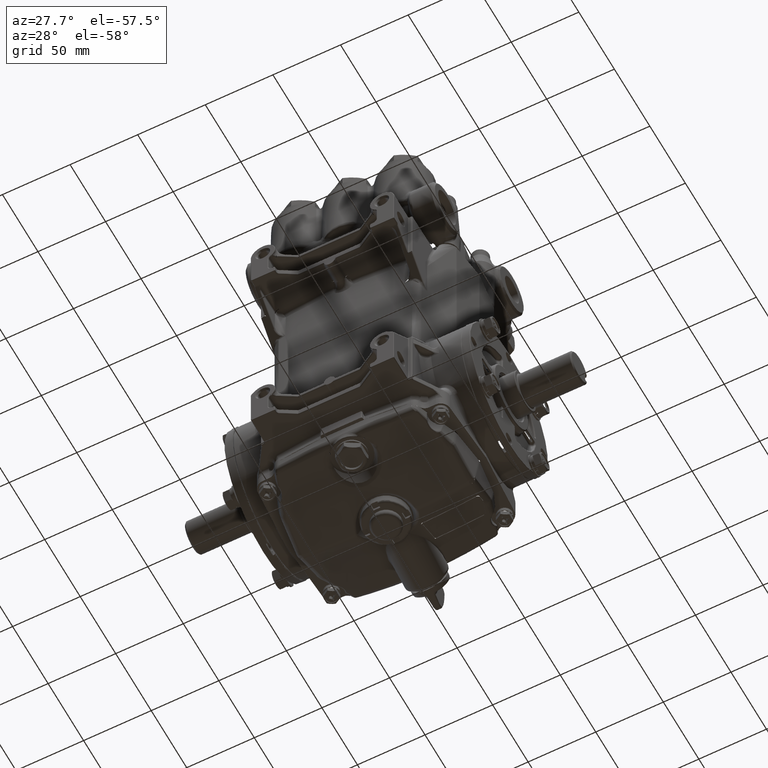
[diagram: clean part render]
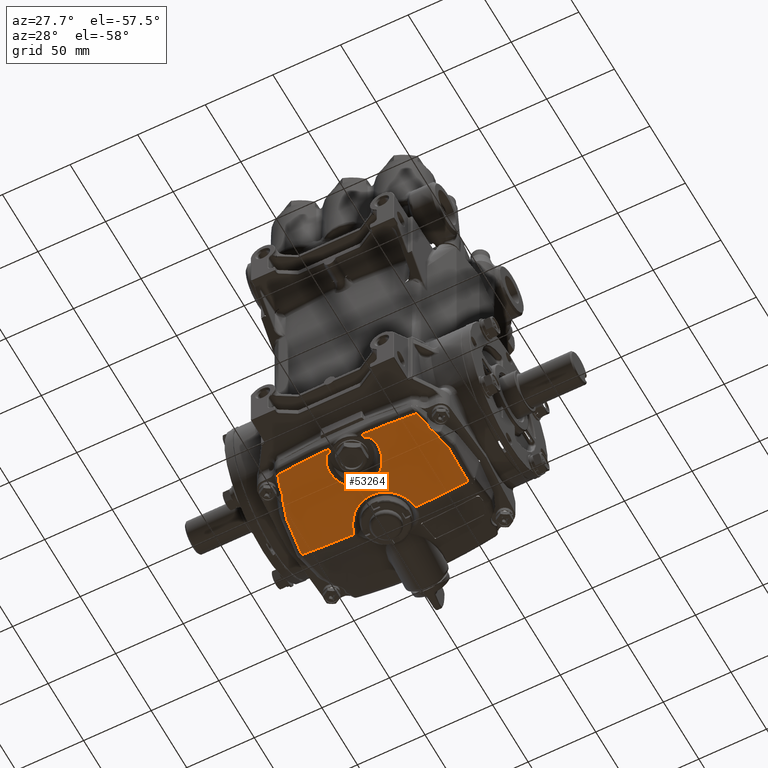
[diagram: same view with one face highlighted and labeled with its STEP entity id]
A machine part, auxiliary view. The second image highlights one B-rep face of the part: STEP entity #53264.
In plain terms, the highlighted conical surface has half-angle 18.015 deg.
Its self-contained STEP definition (entity closure, byte-faithful):
#110 = ORIENTED_EDGE ( 'NONE', *, *, #126936, .T. ) ;
#155 = CARTESIAN_POINT ( 'NONE',  ( 0.05239943407035017875, -0.7996991164095081928, -3.125709479507235322 ) ) ;
#850 = CARTESIAN_POINT ( 'NONE',  ( 0.7140293562682444861, -0.4589460450245631540, -3.223530026259543213 ) ) ;
#972 = CARTESIAN_POINT ( 'NONE',  ( 2.066676357194881408, -2.043994033056883985, -2.608537509707744118 ) ) ;
#1504 = CARTESIAN_POINT ( 'NONE',  ( -0.4593541363199575289, -2.278635321369934630, -2.639237132047327794 ) ) ;
#2528 = CARTESIAN_POINT ( 'NONE',  ( 0.5057585483245777835, -2.182307323138738209, -2.669392029141602674 ) ) ;
#2543 = CARTESIAN_POINT ( 'NONE',  ( 0.6388809771109632552, -1.437278426590108849, -2.907814465296106210 ) ) ;
#3596 = CARTESIAN_POINT ( 'NONE',  ( -0.7147784428174506210, -1.958151321189216310, -2.735613967639259236 ) ) ;
#3656 = VERTEX_POINT ( 'NONE', #78174 ) ;
#4589 = CARTESIAN_POINT ( 'NONE',  ( -0.3300652025608142304, -1.142038354415597423, -3.011623552806554027 ) ) ;
#5294 = CARTESIAN_POINT ( 'NONE',  ( -0.6374426920633041727, -1.436958064847356331, -2.907951951035337768 ) ) ;
#5303 = CARTESIAN_POINT ( 'NONE',  ( -2.223011447093940607, -1.463278941452880622, -2.780899417163357423 ) ) ;
#5802 = CARTESIAN_POINT ( 'NONE',  ( 2.196634498335781505, -1.565084401226243926, -2.750627631148987895 ) ) ;
#5996 = CARTESIAN_POINT ( 'NONE',  ( -2.223764378033351363, -1.460415475359621906, -2.781749183261509106 ) ) ;
#6531 = CARTESIAN_POINT ( 'NONE',  ( 0.5494265247367966509, -2.178603374945878191, -2.669382450904650206 ) ) ;
#6665 = CARTESIAN_POINT ( 'NONE',  ( -2.224142119213044388, -1.458980183390373497, -2.782175076756285392 ) ) ;
#6950 = CARTESIAN_POINT ( 'NONE',  ( -0.5617470531203303530, -2.176754751602651528, -2.669623924843345542 ) ) ;
#7482 = CARTESIAN_POINT ( 'NONE',  ( 2.196634498335781505, -1.565084401226243926, -2.750627631148987895 ) ) ;
#7537 = VERTEX_POINT ( 'NONE', #23573 ) ;
#7673 = CARTESIAN_POINT ( 'NONE',  ( -0.5348746966634003730, -2.179888711667557821, -2.669385774512694542 ) ) ;
#8315 = CARTESIAN_POINT ( 'NONE',  ( -0.5734756531729620077, -2.172944895467519011, -2.670512506073510206 ) ) ;
#8548 = CARTESIAN_POINT ( 'NONE',  ( 0.1318178049520332129, -0.7915974340289055888, -3.127967036714820015 ) ) ;
#8906 = CARTESIAN_POINT ( 'NONE',  ( -2.113233925006161584, -1.881526991925985826, -2.656517419636819977 ) ) ;
#9237 = CARTESIAN_POINT ( 'NONE',  ( 0.02556804478125945107, -0.8008593166435912236, -3.125386537934788045 ) ) ;
#10612 = CARTESIAN_POINT ( 'NONE',  ( -0.1081741565383916720, -0.7959125365938747310, -3.126762306898303034 ) ) ;
#11088 = VERTEX_POINT ( 'NONE', #137163 ) ;
#11300 = CARTESIAN_POINT ( 'NONE',  ( 0.4101165441306947601, -0.7049002239166114459, -3.152321236306664609 ) ) ;
#11348 = CARTESIAN_POINT ( 'NONE',  ( 2.026013570772214667, -2.155381670828772744, -2.576470331479096654 ) ) ;
#11791 = CARTESIAN_POINT ( 'NONE',  ( 0.4593541363199575289, -2.278635321369934630, -2.639237132047327794 ) ) ;
#12930 = CARTESIAN_POINT ( 'NONE',  ( 0.6227118348787535895, -2.137023213555758527, -2.680649332950147734 ) ) ;
#12994 = CARTESIAN_POINT ( 'NONE',  ( 0.4907248371118795860, -1.252018883968657459, -2.972448589821625742 ) ) ;
#13052 = DIRECTION ( 'NONE',  ( -0.000000000000000000, 1.000000000000000000, -0.000000000000000000 ) ) ;
#13696 = CARTESIAN_POINT ( 'NONE',  ( -0.4529553666901343090, -1.219860742391640773, -2.983846103701320196 ) ) ;
#13835 = VERTEX_POINT ( 'NONE', #137578 ) ;
#13992 = CARTESIAN_POINT ( 'NONE',  ( -0.6450185222856975598, -2.108769522094039672, -2.689097167666988142 ) ) ;
#14009 = VERTEX_POINT ( 'NONE', #114638 ) ;
#14763 = CARTESIAN_POINT ( 'NONE',  ( -0.7234181205334595521, -1.931725881537768919, -2.743889233997007349 ) ) ;
#15227 = EDGE_CURVE ( 'NONE', #79127, #11088, #77548, .T. ) ;
#15914 = EDGE_CURVE ( 'NONE', #104292, #14009, #49619, .T. ) ;
#16491 = CARTESIAN_POINT ( 'NONE',  ( -0.09672182545744140159, -1.069004504042166293, -3.037945014650247355 ) ) ;
#16622 = VERTEX_POINT ( 'NONE', #58064 ) ;
#17200 = CARTESIAN_POINT ( 'NONE',  ( -2.226536561796477187, -1.449891909540147017, -2.784871471804313270 ) ) ;
#17341 = CARTESIAN_POINT ( 'NONE',  ( -1.505941802526544082, -2.222348112690021527, -2.610389339868310898 ) ) ;
#17540 = CARTESIAN_POINT ( 'NONE',  ( 0.5494265247367966509, -2.178603374945878191, -2.669382450904650206 ) ) ;
#17631 = CARTESIAN_POINT ( 'NONE',  ( -2.196634498335781505, -1.565084401226243926, -2.750627631148987895 ) ) ;
#18695 = CARTESIAN_POINT ( 'NONE',  ( 2.131526736651527809, -1.728784257706686089, -2.704456262819272538 ) ) ;
#19091 = CARTESIAN_POINT ( 'NONE',  ( 0.8771504326687286079, -0.1677761418793272119, -3.311667608398156215 ) ) ;
#19756 = CARTESIAN_POINT ( 'NONE',  ( -0.6271993793410833851, -0.5535525643775215388, -3.195764467626489580 ) ) ;
#19759 = VERTEX_POINT ( 'NONE', #128450 ) ;
#19875 = CARTESIAN_POINT ( 'NONE',  ( 2.100376579777172292, -1.930298600878002979, -2.642075081279068982 ) ) ;
#20431 = CARTESIAN_POINT ( 'NONE',  ( -0.2123686441479556708, -0.7760607235515484259, -3.132305792164191693 ) ) ;
#20932 = CARTESIAN_POINT ( 'NONE',  ( 0.9043876387192487654, -0.06838820869940087643, -3.342777102159705471 ) ) ;
#21121 = CARTESIAN_POINT ( 'NONE',  ( -0.2637593250053258398, -0.7621255502606008037, -3.136208349490189562 ) ) ;
#21803 = CARTESIAN_POINT ( 'NONE',  ( -0.05517872169927699744, -0.8007395297729150707, -3.125419891367022807 ) ) ;
#22052 = CARTESIAN_POINT ( 'NONE',  ( 0.7147784428174506210, -1.958151321189216310, -2.735613967639259236 ) ) ;
#22167 = CARTESIAN_POINT ( 'NONE',  ( -2.356628996426725298, -1.016727222602198388, -2.911174140354998663 ) ) ;
#22316 = ORIENTED_EDGE ( 'NONE', *, *, #104536, .T. ) ;
#22993 = CARTESIAN_POINT ( 'NONE',  ( 0.4968108149035035392, -2.217033446892584081, -2.658331786103247829 ) ) ;
#23359 = B_SPLINE_CURVE_WITH_KNOTS ( 'NONE', 3,
 ( #64831, #73944, #129209, #52925, #138324, #75997, #98390, #42443, #2543, #65533, #108901, #107514, #23512, #12994, #127836, #127140, #132677, #109603, #47284, #37461, #36073, #57109, #47973, #66900, #36777, #101172, #122864, #80170, #16491, #131294, #100468, #68972, #35378, #131975, #4589, #24886, #111676, #13696, #69666, #46590, #133361, #99793, #5294, #78093, #122180, #79485, #120784, #67591, #26926, #121493 ),
 .UNSPECIFIED., .F., .F.,
 ( 4, 2, 2, 2, 2, 2, 2, 2, 2, 2, 2, 2, 2, 2, 2, 2, 2, 2, 2, 2, 2, 2, 2, 2, 4 ),
 ( 0.000000000000000000, 0.003746958025281257442, 0.005620437037921876405, 0.007493916050562496670, 0.01124087407584372159, 0.01311435308848433491, 0.01498783210112494650, 0.01873479012640614713, 0.02060826913904675178, 0.02248174815168735644, 0.02622870617696856227, 0.02810218518960916345, 0.02997566420224976810, 0.03184914321489036582, 0.03278588272121066988, 0.03372262222753096700, 0.03746958025281217630, 0.03934305926545278442, 0.04121653827809339254, 0.04496349630337460185, 0.04871045432865581809, 0.05058393334129641927, 0.05245741235393702045, 0.05620437037921824364, 0.05995132840449946682 ),
 .UNSPECIFIED. ) ;
#23446 = CARTESIAN_POINT ( 'NONE',  ( 0.6701833370370047227, -2.067901278370704254, -2.701526937066267120 ) ) ;
#23512 = CARTESIAN_POINT ( 'NONE',  ( 0.5405942946745000421, -1.303525499596068116, -2.954335538120711036 ) ) ;
#23573 = CARTESIAN_POINT ( 'NONE',  ( -0.7377457004362788506, -1.796201399099913054, -2.787443723678345364 ) ) ;
#23950 = B_SPLINE_CURVE_WITH_KNOTS ( 'NONE', 3,
 ( #55763, #55074, #24247, #22167 ),
 .UNSPECIFIED., .F., .F.,
 ( 4, 4 ),
 ( 0.000000000000000000, 0.0006622808968958825496 ),
 .UNSPECIFIED. ) ;
#24247 = CARTESIAN_POINT ( 'NONE',  ( -2.356080969875169906, -1.025070286154011745, -2.908507838671443579 ) ) ;
#24287 = DIRECTION ( 'NONE',  ( 0.000000000000000000, -1.000000000000000000, 0.000000000000000000 ) ) ;
#24561 = CARTESIAN_POINT ( 'NONE',  ( 0.7147784428174506210, -1.958151321189216310, -2.735613967639259236 ) ) ;
#24886 = CARTESIAN_POINT ( 'NONE',  ( -0.3728631108813122430, -1.165803096356001101, -3.003114792006826406 ) ) ;
#25139 = CARTESIAN_POINT ( 'NONE',  ( 0.7234181205334595521, -1.931725881537768919, -2.743889233997007349 ) ) ;
#25405 = CARTESIAN_POINT ( 'NONE',  ( -0.5027228152259869409, -2.199983009415949819, -2.663722737212629088 ) ) ;
#26747 = CARTESIAN_POINT ( 'NONE',  ( -0.4593541363199575289, -2.278635321369934630, -2.639237132047327794 ) ) ;
#26926 = CARTESIAN_POINT ( 'NONE',  ( -0.7363986961795145891, -1.748925149001816060, -2.802881659409962811 ) ) ;
#26936 = CARTESIAN_POINT ( 'NONE',  ( -2.261862562994630288, -1.320471313252671308, -2.823098843553761839 ) ) ;
#27092 = VERTEX_POINT ( 'NONE', #2528 ) ;
#27312 = CARTESIAN_POINT ( 'NONE',  ( -0.7294884581063653117, -1.904996984896478063, -2.752354851648464606 ) ) ;
#27512 = EDGE_CURVE ( 'NONE', #27092, #79127, #46441, .T. ) ;
#27650 = CARTESIAN_POINT ( 'NONE',  ( -2.322934810871765343, -1.118658963737707124, -2.881904386098126380 ) ) ;
#27770 = CARTESIAN_POINT ( 'NONE',  ( 2.173344428484001334, -1.603340175782115740, -2.740778961998565855 ) ) ;
#27844 = CARTESIAN_POINT ( 'NONE',  ( 2.356628996426725298, -1.016727222602198388, -2.911174140354998663 ) ) ;
#27925 = CARTESIAN_POINT ( 'NONE',  ( -0.5792113208878559849, -2.170393062450837629, -2.671168354823621804 ) ) ;
#28765 = CARTESIAN_POINT ( 'NONE',  ( -2.127911702009642969, -1.771980399995127797, -2.690724333063940765 ) ) ;
#29296 = DIRECTION ( 'NONE',  ( -0.000000000000000000, 1.000000000000000000, -0.000000000000000000 ) ) ;
#29337 = CARTESIAN_POINT ( 'NONE',  ( -0.5203187071680595022, -2.181123393225837592, -2.669388967358276687 ) ) ;
#29703 = B_SPLINE_CURVE_WITH_KNOTS ( 'NONE', 3,
 ( #92364, #7673, #29337, #134371 ),
 .UNSPECIFIED., .F., .F.,
 ( 4, 4 ),
 ( 0.000000000000000000, 0.001113145543369387525 ),
 .UNSPECIFIED. ) ;
#29841 = CARTESIAN_POINT ( 'NONE',  ( 2.155337905230421569, -1.643650158625276747, -2.729633015072530977 ) ) ;
#29913 = CARTESIAN_POINT ( 'NONE',  ( 2.418907219887231452, -0.06838820169510474722, -3.214233133969160772 ) ) ;
#30236 = CARTESIAN_POINT ( 'NONE',  ( 0.6631433563091438943, -0.5180559416183809773, -3.206112484508274463 ) ) ;
#30515 = CARTESIAN_POINT ( 'NONE',  ( 2.131480648639751951, -1.815576504780482159, -2.676161489803752236 ) ) ;
#30583 = CARTESIAN_POINT ( 'NONE',  ( -2.089737855152356438, -1.962586973804670398, -2.632602950336423220 ) ) ;
#31598 = CARTESIAN_POINT ( 'NONE',  ( -0.2893844942286576960, -0.7539545957516503583, -3.138500297943866979 ) ) ;
#31777 = VERTEX_POINT ( 'NONE', #81502 ) ;
#31859 = CARTESIAN_POINT ( 'NONE',  ( 0.6806123003105807312, -2.046515242090419573, -2.708113776272317086 ) ) ;
#32197 = B_SPLINE_CURVE_WITH_KNOTS ( 'NONE', 3,
 ( #59208, #38154, #122188, #135451, #101893, #5303, #5996, #132688, #50056, #6665, #89979, #122873, #17200, #111687, #48660, #68982, #91338, #26936, #80878, #102574, #37470, #123587, #27650, #70384 ),
 .UNSPECIFIED., .F., .F.,
 ( 4, 2, 1, 1, 1, 2, 2, 1, 1, 1, 1, 1, 2, 2, 1, 1, 4 ),
 ( 0.5239786756547374358, 0.5834813411978867492, 0.6132326739694620166, 0.6206705071623552783, 0.6243894237588024643, 0.6248542883333585429, 0.6253191529079145106, 0.6262488820570262238, 0.6281083403552493172, 0.6429840067410386162, 0.7024866722841969224, 0.7322380050557758535, 0.7471136714415655966, 0.7508325880380133377, 0.7545515046344610788, 0.7619893378273558948, 1.000000000000000000 ),
 .UNSPECIFIED. ) ;
#32299 = CARTESIAN_POINT ( 'NONE',  ( 0.1840323353870728373, -0.7823850881710618932, -3.130538592587553293 ) ) ;
#32650 = CARTESIAN_POINT ( 'NONE',  ( -2.044288912966965022, -2.105312551548863986, -2.590884940469813547 ) ) ;
#32979 = CARTESIAN_POINT ( 'NONE',  ( -0.7314257533501444808, -0.4386446822295306802, -3.229513753648503016 ) ) ;
#33473 = CARTESIAN_POINT ( 'NONE',  ( 0.4807297279524531119, -2.249269142635469620, -2.648261388637370484 ) ) ;
#34627 = CARTESIAN_POINT ( 'NONE',  ( 0.5792113208878559849, -2.170393062450837629, -2.671168354823621804 ) ) ;
#34656 = CARTESIAN_POINT ( 'NONE',  ( -2.356628996426725298, -1.016727222602198388, -2.911174140354998663 ) ) ;
#34850 = VERTEX_POINT ( 'NONE', #80935 ) ;
#35070 = CARTESIAN_POINT ( 'NONE',  ( 0.9043876387192487654, -0.06838820869940087643, -3.342777102159705471 ) ) ;
#35378 = CARTESIAN_POINT ( 'NONE',  ( -0.2407217983399931038, -1.102246316882022459, -3.025925745430845470 ) ) ;
#35528 = CARTESIAN_POINT ( 'NONE',  ( -0.9837259740556566490, -2.263444385143727366, -2.631460031508047415 ) ) ;
#35664 = CARTESIAN_POINT ( 'NONE',  ( -0.6992395292025400666, -2.002930180156187845, -2.721621218821659749 ) ) ;
#35989 = CARTESIAN_POINT ( 'NONE',  ( 2.356628996426725298, -1.016727222602198388, -2.911174140354998663 ) ) ;
#36073 = CARTESIAN_POINT ( 'NONE',  ( 0.1966383920226290605, -1.088207568539243830, -3.030998043101641670 ) ) ;
#36414 = CARTESIAN_POINT ( 'NONE',  ( 2.418907219887231452, -0.06838820169510474722, -3.214233133969160772 ) ) ;
#36777 = CARTESIAN_POINT ( 'NONE',  ( 0.02593239278948314755, -1.062630431338077441, -3.040254102912951506 ) ) ;
#37072 = EDGE_LOOP ( 'NONE', ( #72708, #112866, #89117, #101102, #40618, #125677, #83929, #111104, #59205, #109409, #51120, #57400, #80421, #115919, #110, #22316, #118645, #135694, #96640, #97403, #93716, #66507, #107399, #103236 ) ) ;
#37232 = CARTESIAN_POINT ( 'NONE',  ( -2.173344428484001334, -1.603340175782115740, -2.740778961998565855 ) ) ;
#37441 = CONICAL_SURFACE ( 'NONE', #59965, 19.68503937007873716, 0.3144157226116798820 ) ;
#37461 = CARTESIAN_POINT ( 'NONE',  ( 0.2430180275705558779, -1.103070088878607802, -3.025628693821864612 ) ) ;
#37470 = CARTESIAN_POINT ( 'NONE',  ( -2.264374812318980634, -1.311637541712385335, -2.825694381703594882 ) ) ;
#37889 = B_SPLINE_CURVE_WITH_KNOTS ( 'NONE', 3,
 ( #27844, #102770, #134252, #29913 ),
 .UNSPECIFIED., .F., .F.,
 ( 4, 4 ),
 ( 0.000000000000000000, 0.9327369186256666556 ),
 .UNSPECIFIED. ) ;
#38154 = CARTESIAN_POINT ( 'NONE',  ( -2.203639417007458245, -1.537847752320081529, -2.758736030320163124 ) ) ;
#38429 = CARTESIAN_POINT ( 'NONE',  ( -0.6050510496452983222, -2.153910245661435852, -2.675726034235119233 ) ) ;
#40580 = B_SPLINE_CURVE_WITH_KNOTS ( 'NONE', 3,
 ( #17540, #60234, #95173, #136482 ),
 .UNSPECIFIED., .F., .F.,
 ( 4, 4 ),
 ( 0.000000000000000000, 0.001113145543369387525 ),
 .UNSPECIFIED. ) ;
#40618 = ORIENTED_EDGE ( 'NONE', *, *, #112877, .F. ) ;
#40753 = CARTESIAN_POINT ( 'NONE',  ( 0.5010028999720674836, -0.6512346105886434033, -3.167609257946623291 ) ) ;
#41886 = EDGE_CURVE ( 'NONE', #16622, #135471, #49384, .T. ) ;
#42377 = CARTESIAN_POINT ( 'NONE',  ( 0.5617470531203303530, -2.176754751602651528, -2.669623924843345542 ) ) ;
#42443 = CARTESIAN_POINT ( 'NONE',  ( 0.6608101398322838715, -1.478718590170357006, -2.893579187807353570 ) ) ;
#42606 = CARTESIAN_POINT ( 'NONE',  ( -0.7147784428174506210, -1.958151321189216310, -2.735613967639259236 ) ) ;
#43170 = CARTESIAN_POINT ( 'NONE',  ( -2.110688397266350602, -1.890525154773061045, -2.653856754046399757 ) ) ;
#43501 = CARTESIAN_POINT ( 'NONE',  ( 0.7753006710704803961, -0.3746008636670258851, -3.248640937433623144 ) ) ;
#44427 = CARTESIAN_POINT ( 'NONE',  ( 2.131480648639751951, -1.815576504780482159, -2.676161489803752236 ) ) ;
#44440 = CARTESIAN_POINT ( 'NONE',  ( 0.7074079530801908877, -1.980694804656511598, -2.728554356416740934 ) ) ;
#45383 = CARTESIAN_POINT ( 'NONE',  ( 0.4706671387645703919, -2.264284786280649442, -2.643630947208244208 ) ) ;
#46441 = B_SPLINE_CURVE_WITH_KNOTS ( 'NONE', 3,
 ( #85323, #97192, #108381, #22993, #98572, #33473, #45383, #11791 ),
 .UNSPECIFIED., .F., .F.,
 ( 4, 2, 2, 4 ),
 ( 4.124281259501112338E-15, 0.0007148681993692251359, 0.001429736398734325967, 0.002859472797464520689 ),
 .UNSPECIFIED. ) ;
#46590 = CARTESIAN_POINT ( 'NONE',  ( -0.5568478576800802715, -1.320215025761786176, -2.948465156152519473 ) ) ;
#47284 = CARTESIAN_POINT ( 'NONE',  ( 0.3100334499637708019, -1.132160948714739268, -3.015169162785914292 ) ) ;
#47802 = CARTESIAN_POINT ( 'NONE',  ( -0.5049821656982017570, -2.191306220953124662, -2.666485218895642273 ) ) ;
#47973 = CARTESIAN_POINT ( 'NONE',  ( 0.09971997121695136412, -1.069095970454977840, -3.037911819999308705 ) ) ;
#48257 = CARTESIAN_POINT ( 'NONE',  ( -0.6806123003105807312, -2.046515242090419573, -2.708113776272317086 ) ) ;
#48660 = CARTESIAN_POINT ( 'NONE',  ( -2.245622557623652149, -1.378603641739164054, -2.805979155048969442 ) ) ;
#48941 = CARTESIAN_POINT ( 'NONE',  ( -0.5556985542584657045, -2.178049377893207517, -2.669381018385817761 ) ) ;
#49384 = B_SPLINE_CURVE_WITH_KNOTS ( 'NONE', 3,
 ( #5802, #68784, #110817, #79986 ),
 .UNSPECIFIED., .F., .F.,
 ( 4, 4 ),
 ( 0.5309028691383378407, 1.000000000000000000 ),
 .UNSPECIFIED. ) ;
#49494 = CARTESIAN_POINT ( 'NONE',  ( 2.184068037596007095, -1.583854735375857414, -2.745932046675978899 ) ) ;
#49619 = CIRCLE ( 'NONE', #134541, 19.66279930220901662 ) ;
#49865 = B_SPLINE_CURVE_WITH_KNOTS ( 'NONE', 3,
 ( #22052, #44440, #96264, #31859, #23446, #138257, #66153, #108839, #12930, #55639, #85772, #34627, #77348, #42377, #85074, #127774 ),
 .UNSPECIFIED., .F., .F.,
 ( 4, 2, 2, 2, 2, 2, 2, 4 ),
 ( 0.000000000000000000, 0.001877747167397333548, 0.003755494334794667096, 0.004694367918493323570, 0.005633241502191978743, 0.006572115085890634784, 0.007041551877739954564, 0.007510988669589274344 ),
 .UNSPECIFIED. ) ;
#50056 = CARTESIAN_POINT ( 'NONE',  ( -2.224089798275783458, -1.459178957611110938, -2.782116095571778303 ) ) ;
#50831 = B_SPLINE_CURVE_WITH_KNOTS ( 'NONE', 3,
 ( #91707, #56794, #67274, #27312, #14763, #3596 ),
 .UNSPECIFIED., .F., .F.,
 ( 4, 2, 4 ),
 ( 0.000000000000000000, 0.002179136293652371870, 0.004358272587304743741 ),
 .UNSPECIFIED. ) ;
#50999 = CARTESIAN_POINT ( 'NONE',  ( -0.5494265247367966509, -2.178603374945878191, -2.669382450904650206 ) ) ;
#51120 = ORIENTED_EDGE ( 'NONE', *, *, #136693, .F. ) ;
#51130 = CARTESIAN_POINT ( 'NONE',  ( -0.5057585483245777835, -2.182307323138738209, -2.669392029141602674 ) ) ;
#51238 = CARTESIAN_POINT ( 'NONE',  ( 0.2099217211864341237, -0.7766432214456850947, -3.132142907198965709 ) ) ;
#51896 = B_SPLINE_CURVE_WITH_KNOTS ( 'NONE', 3,
 ( #56879, #28765, #133123, #70817, #112833, #37232, #113516, #17631 ),
 .UNSPECIFIED., .F., .F.,
 ( 4, 2, 2, 4 ),
 ( 0.000000000000000000, 0.003464694729229905561, 0.005197042093844857907, 0.006929389458459811121 ),
 .UNSPECIFIED. ) ;
#51936 = CARTESIAN_POINT ( 'NONE',  ( -0.8773596332106888829, -0.1671554589683140191, -3.311860229958108359 ) ) ;
#52877 = CIRCLE ( 'NONE', #115469, 19.66279930220901662 ) ;
#52925 = CARTESIAN_POINT ( 'NONE',  ( 0.7160696312986282175, -1.633889221565251848, -2.841091408057257350 ) ) ;
#53264 = ADVANCED_FACE ( 'NONE', ( #114726 ), #37441, .T. ) ;
#53293 = CARTESIAN_POINT ( 'NONE',  ( -0.8379319024423231843, -0.2615717158247677920, -3.282846339857861118 ) ) ;
#53653 = CARTESIAN_POINT ( 'NONE',  ( -2.127541782171116225, -1.830018935995347595, -2.671772868731994599 ) ) ;
#53865 = EDGE_CURVE ( 'NONE', #3656, #104292, #99106, .T. ) ;
#54001 = CARTESIAN_POINT ( 'NONE',  ( 0.4786990569338724355, -0.6653878434140558795, -3.163567734051654146 ) ) ;
#55074 = CARTESIAN_POINT ( 'NONE',  ( -2.354367271003275253, -1.033227502936427289, -2.906045538927374494 ) ) ;
#55441 = CARTESIAN_POINT ( 'NONE',  ( 0.9837259740556566490, -2.263444385143727366, -2.631460031508047415 ) ) ;
#55639 = CARTESIAN_POINT ( 'NONE',  ( 0.6050510496452983222, -2.153910245661435852, -2.675726034235119233 ) ) ;
#55763 = CARTESIAN_POINT ( 'NONE',  ( -2.351437376510342236, -1.041190594621048016, -2.903795342977849803 ) ) ;
#56794 = CARTESIAN_POINT ( 'NONE',  ( -0.7385301745452168554, -1.823734344139491759, -2.778452912538690089 ) ) ;
#56879 = CARTESIAN_POINT ( 'NONE',  ( -2.131480648639751951, -1.815576504780482159, -2.676161489803752236 ) ) ;
#57030 = CARTESIAN_POINT ( 'NONE',  ( 2.354367271003275253, -1.033227502936427289, -2.906045538927374494 ) ) ;
#57109 = CARTESIAN_POINT ( 'NONE',  ( 0.1244046635150845709, -1.072989553957001796, -3.036501885844371529 ) ) ;
#57400 = ORIENTED_EDGE ( 'NONE', *, *, #95051, .F. ) ;
#57663 = VERTEX_POINT ( 'NONE', #1504 ) ;
#58064 = CARTESIAN_POINT ( 'NONE',  ( 2.196634498335781505, -1.565084401226243926, -2.750627631148987895 ) ) ;
#58784 = CARTESIAN_POINT ( 'NONE',  ( -0.7074079530801908877, -1.980694804656511598, -2.728554356416740934 ) ) ;
#59205 = ORIENTED_EDGE ( 'NONE', *, *, #15227, .F. ) ;
#59208 = CARTESIAN_POINT ( 'NONE',  ( -2.196634498335781505, -1.565084401226243926, -2.750627631148987895 ) ) ;
#59538 = VERTEX_POINT ( 'NONE', #44427 ) ;
#59965 = AXIS2_PLACEMENT_3D ( 'NONE', #81845, #29296, #72718 ) ;
#60234 = CARTESIAN_POINT ( 'NONE',  ( 0.5348746966634003730, -2.179888711667557821, -2.669385774512694542 ) ) ;
#60736 = VERTEX_POINT ( 'NONE', #70993 ) ;
#61906 = CARTESIAN_POINT ( 'NONE',  ( 2.026013570772214667, -2.155381670828772744, -2.576470331479096654 ) ) ;
#63145 = CARTESIAN_POINT ( 'NONE',  ( -0.8927884610346332739, -0.1184411875418662496, -3.327016533403606591 ) ) ;
#63595 = VERTEX_POINT ( 'NONE', #82445 ) ;
#63840 = CARTESIAN_POINT ( 'NONE',  ( -0.5022675593416734419, -0.6503977866531402974, -3.167848684229896961 ) ) ;
#64402 = EDGE_CURVE ( 'NONE', #57663, #19759, #127300, .T. ) ;
#64543 = VERTEX_POINT ( 'NONE', #51130 ) ;
#64682 = EDGE_CURVE ( 'NONE', #13835, #127183, #113936, .T. ) ;
#64831 = CARTESIAN_POINT ( 'NONE',  ( 0.7377457004362788506, -1.796201399099913054, -2.787443723678345364 ) ) ;
#65259 = CARTESIAN_POINT ( 'NONE',  ( 1.505941802526544082, -2.222348112690021527, -2.610389339868310898 ) ) ;
#65533 = CARTESIAN_POINT ( 'NONE',  ( 0.6001867607472822774, -1.378164958534827012, -2.928282369884709802 ) ) ;
#66153 = CARTESIAN_POINT ( 'NONE',  ( 0.6450185222856975598, -2.108769522094039672, -2.689097167666988142 ) ) ;
#66507 = ORIENTED_EDGE ( 'NONE', *, *, #86465, .T. ) ;
#66900 = CARTESIAN_POINT ( 'NONE',  ( 0.05051206377873857650, -1.063931475644157354, -3.039782484485358260 ) ) ;
#67274 = CARTESIAN_POINT ( 'NONE',  ( -0.7370483566957536370, -1.851001687888912839, -2.769636449180905569 ) ) ;
#67591 = CARTESIAN_POINT ( 'NONE',  ( -0.7306620003742005931, -1.701797854851210490, -2.818441837219940904 ) ) ;
#67892 = CARTESIAN_POINT ( 'NONE',  ( -0.7147784428174506210, -1.958151321189216310, -2.735613967639259236 ) ) ;
#68784 = CARTESIAN_POINT ( 'NONE',  ( 2.241797404767698509, -1.389113764764426273, -2.803156315206667415 ) ) ;
#68798 = CARTESIAN_POINT ( 'NONE',  ( -0.4807297279524531119, -2.249269142635469620, -2.648261388637370484 ) ) ;
#68972 = CARTESIAN_POINT ( 'NONE',  ( -0.1940963561409833893, -1.087471571437316209, -3.031263950077303981 ) ) ;
#68982 = CARTESIAN_POINT ( 'NONE',  ( -2.255849523958772807, -1.341769504633568477, -2.816835127525801230 ) ) ;
#69666 = CARTESIAN_POINT ( 'NONE',  ( -0.4896113141548384395, -1.250968607268809318, -2.972819230192143447 ) ) ;
#69928 = CARTESIAN_POINT ( 'NONE',  ( 0.7370483566957536370, -1.851001687888912839, -2.769636449180905569 ) ) ;
#70384 = CARTESIAN_POINT ( 'NONE',  ( -2.351437376510342236, -1.041190594621048016, -2.903795342977849803 ) ) ;
#70817 = CARTESIAN_POINT ( 'NONE',  ( -2.148034229011641205, -1.664564096121107450, -2.723613148799221673 ) ) ;
#70993 = CARTESIAN_POINT ( 'NONE',  ( 2.356628996426725298, -1.016727222602198388, -2.911174140354998663 ) ) ;
#71390 = VERTEX_POINT ( 'NONE', #20932 ) ;
#72634 = CARTESIAN_POINT ( 'NONE',  ( -2.131480648639751951, -1.815576504780482159, -2.676161489803752236 ) ) ;
#72708 = ORIENTED_EDGE ( 'NONE', *, *, #15914, .T. ) ;
#72718 = DIRECTION ( 'NONE',  ( 0.000000000000000000, 0.000000000000000000, 1.000000000000000000 ) ) ;
#72957 = CARTESIAN_POINT ( 'NONE',  ( -0.6641479529912905910, -0.5169804734507074118, -3.206427768484047203 ) ) ;
#73944 = CARTESIAN_POINT ( 'NONE',  ( 0.7363994847252786080, -1.748952824851095489, -2.802872621933817143 ) ) ;
#74682 = CARTESIAN_POINT ( 'NONE',  ( -2.113992956814060076, -1.878835111619391540, -2.657313619897545998 ) ) ;
#75019 = CARTESIAN_POINT ( 'NONE',  ( 0.3621797199516690324, -0.7273345933900464688, -3.145987282344658187 ) ) ;
#75997 = CARTESIAN_POINT ( 'NONE',  ( 0.6960931986937947125, -1.566246661994498579, -2.863841109989795353 ) ) ;
#76273 = EDGE_CURVE ( 'NONE', #19759, #63595, #79837, .T. ) ;
#76871 = EDGE_CURVE ( 'NONE', #60736, #85695, #37889, .T. ) ;
#77348 = CARTESIAN_POINT ( 'NONE',  ( 0.5734756531729620077, -2.172944895467519011, -2.670512506073510206 ) ) ;
#77548 = B_SPLINE_CURVE_WITH_KNOTS ( 'NONE', 3,
 ( #96065, #55441, #65259, #11348 ),
 .UNSPECIFIED., .F., .F.,
 ( 4, 4 ),
 ( 0.06473334799472774126, 0.1046774192232396289 ),
 .UNSPECIFIED. ) ;
#78093 = CARTESIAN_POINT ( 'NONE',  ( -0.6596656361370454302, -1.478835729243860975, -2.893574764287495604 ) ) ;
#78174 = CARTESIAN_POINT ( 'NONE',  ( -2.356628996426725298, -1.016727222602198388, -2.911174140354998663 ) ) ;
#78383 = CARTESIAN_POINT ( 'NONE',  ( -0.6227118348787535895, -2.137023213555758527, -2.680649332950147734 ) ) ;
#78626 = CARTESIAN_POINT ( 'NONE',  ( -0.4931167731720314529, -2.225310962706375850, -2.655735664317464106 ) ) ;
#79127 = VERTEX_POINT ( 'NONE', #99619 ) ;
#79485 = CARTESIAN_POINT ( 'NONE',  ( -0.6970279829379877334, -1.565627702131302090, -2.864016229124909607 ) ) ;
#79743 = CARTESIAN_POINT ( 'NONE',  ( 0.7385301745452168554, -1.823734344139491759, -2.778452912538690089 ) ) ;
#79837 = B_SPLINE_CURVE_WITH_KNOTS ( 'NONE', 3,
 ( #94315, #32650, #86561, #30583, #95014, #43170, #127876, #8906, #117365, #74682, #116673, #128568, #53653, #72634 ),
 .UNSPECIFIED., .F., .F.,
 ( 4, 2, 1, 1, 2, 2, 1, 1, 4 ),
 ( 0.000000000000000000, 0.1556400076926323928, 0.2334600115389487973, 0.2431875120197381779, 0.2480512622601330486, 0.2504831373803301786, 0.2529150125005273364, 0.2723700134621078184, 0.3112800153852695040 ),
 .UNSPECIFIED. ) ;
#79986 = CARTESIAN_POINT ( 'NONE',  ( 2.351437376510342236, -1.041190594621048016, -2.903795342977849803 ) ) ;
#79998 = CARTESIAN_POINT ( 'NONE',  ( -0.5057585483245777835, -2.182307323138738209, -2.669392029141602674 ) ) ;
#80170 = CARTESIAN_POINT ( 'NONE',  ( -0.08447375441084661873, -1.067451683859283129, -3.038507392071386537 ) ) ;
#80318 = CARTESIAN_POINT ( 'NONE',  ( -2.026013570772214667, -2.155381670828772744, -2.576470331479096654 ) ) ;
#80421 = ORIENTED_EDGE ( 'NONE', *, *, #64682, .F. ) ;
#80878 = CARTESIAN_POINT ( 'NONE',  ( -2.262183643902595076, -1.319339447148940581, -2.823431516714111744 ) ) ;
#80935 = CARTESIAN_POINT ( 'NONE',  ( -2.351437376510342236, -1.041190594621048016, -2.903795342977849803 ) ) ;
#81502 = CARTESIAN_POINT ( 'NONE',  ( -2.196634498335781505, -1.565084401226243926, -2.750627631148987895 ) ) ;
#81845 = CARTESIAN_POINT ( 'NONE',  ( 0.000000000000000000, -5.463695987328526437E-16, 16.29921259842519632 ) ) ;
#82445 = CARTESIAN_POINT ( 'NONE',  ( -2.131480648639751951, -1.815576504780482159, -2.676161489803752236 ) ) ;
#82556 = EDGE_CURVE ( 'NONE', #13835, #7537, #23359, .T. ) ;
#82998 = EDGE_CURVE ( 'NONE', #64543, #57663, #86566, .T. ) ;
#83474 = CARTESIAN_POINT ( 'NONE',  ( 0.2612621641945824247, -0.7628762516810027039, -3.135997893379374180 ) ) ;
#83929 = ORIENTED_EDGE ( 'NONE', *, *, #99365, .F. ) ;
#84150 = CARTESIAN_POINT ( 'NONE',  ( -0.9043876387192487654, -0.06838820869940087643, -3.342777102159705471 ) ) ;
#84826 = CARTESIAN_POINT ( 'NONE',  ( -0.5664339679745185041, -0.6041988710467175450, -3.181116273278310036 ) ) ;
#85074 = CARTESIAN_POINT ( 'NONE',  ( 0.5556985542584657045, -2.178049377893207517, -2.669381018385817761 ) ) ;
#85253 = VERTEX_POINT ( 'NONE', #42606 ) ;
#85323 = CARTESIAN_POINT ( 'NONE',  ( 0.5057585483245777835, -2.182307323138738209, -2.669392029141602674 ) ) ;
#85405 = CARTESIAN_POINT ( 'NONE',  ( 2.351437376510342236, -1.041190594621048016, -2.903795342977849803 ) ) ;
#85522 = CARTESIAN_POINT ( 'NONE',  ( -0.8148214935322380947, -0.3075833447444550894, -3.268845505321508860 ) ) ;
#85695 = VERTEX_POINT ( 'NONE', #36414 ) ;
#85772 = CARTESIAN_POINT ( 'NONE',  ( 0.5954301328571929286, -2.161477707698064243, -2.673569233152097713 ) ) ;
#86206 = CARTESIAN_POINT ( 'NONE',  ( 0.7302015870049624047, -0.4385169011949400786, -3.229578769218376610 ) ) ;
#86465 = EDGE_CURVE ( 'NONE', #31777, #34850, #32197, .T. ) ;
#86561 = CARTESIAN_POINT ( 'NONE',  ( -2.062499472008028523, -2.050863611614324178, -2.606717026291330619 ) ) ;
#86566 = B_SPLINE_CURVE_WITH_KNOTS ( 'NONE', 3,
 ( #79998, #47802, #25405, #109429, #78626, #68798, #122685, #26747 ),
 .UNSPECIFIED., .F., .F.,
 ( 4, 2, 2, 4 ),
 ( 4.124281259501112338E-15, 0.0007148681993692251359, 0.001429736398734325967, 0.002859472797464520689 ),
 .UNSPECIFIED. ) ;
#87820 = CARTESIAN_POINT ( 'NONE',  ( 2.351437376510342236, -1.041190594621048016, -2.903795342977849803 ) ) ;
#88683 = DIRECTION ( 'NONE',  ( 0.000000000000000000, 0.000000000000000000, -1.000000000000000000 ) ) ;
#89117 = ORIENTED_EDGE ( 'NONE', *, *, #137877, .F. ) ;
#89722 = CARTESIAN_POINT ( 'NONE',  ( -2.418907219887231452, -0.06838820169510474722, -3.214233133969160772 ) ) ;
#89979 = CARTESIAN_POINT ( 'NONE',  ( -2.224295228549877823, -1.458398581837912822, -2.782347649143063428 ) ) ;
#90932 = CARTESIAN_POINT ( 'NONE',  ( -0.6516360641923389929, -2.098780301552136685, -2.692121289175904764 ) ) ;
#91338 = CARTESIAN_POINT ( 'NONE',  ( -2.260106404874401953, -1.326668340642318755, -2.821277201821669411 ) ) ;
#91433 = EDGE_CURVE ( 'NONE', #34850, #3656, #23950, .T. ) ;
#91482 = CARTESIAN_POINT ( 'NONE',  ( -0.4593541363199575289, -2.278635321369934630, -2.639237132047327794 ) ) ;
#91707 = CARTESIAN_POINT ( 'NONE',  ( -0.7377457004362788506, -1.796201399099913054, -2.787443723678345364 ) ) ;
#92364 = CARTESIAN_POINT ( 'NONE',  ( -0.5494265247367966509, -2.178603374945878191, -2.669382450904650206 ) ) ;
#93716 = ORIENTED_EDGE ( 'NONE', *, *, #110104, .T. ) ;
#93941 = CARTESIAN_POINT ( 'NONE',  ( -0.4801475832993566950, -0.6644897841884086498, -3.163823992962746079 ) ) ;
#94222 = B_SPLINE_CURVE_WITH_KNOTS ( 'NONE', 3,
 ( #84150, #63145, #51936, #126838, #53293, #85522, #116310, #105149, #32979, #72957, #19756, #84826, #127518, #63840, #93941, #96018, #136651, #31598, #21121, #20431, #106522, #10612, #21803, #9237, #155, #107196, #8548, #32299, #51238, #83474, #128217, #75019, #11300, #54001, #40753, #126169, #96711, #94661, #30236, #850, #86206, #137342, #43501, #128896, #114972, #19091, #104468, #35070 ),
 .UNSPECIFIED., .F., .F.,
 ( 4, 2, 2, 2, 2, 2, 2, 2, 2, 2, 2, 2, 2, 2, 2, 2, 2, 2, 2, 2, 2, 2, 2, 4 ),
 ( 1.056081928668503685E-17, 0.004051485460631475306, 0.006077228190947215128, 0.008102970921262955817, 0.01215445638189443026, 0.01620594184252590816, 0.01823168457284164365, 0.02025742730315737913, 0.02430891276378884316, 0.02633465549410457865, 0.02836039822442031066, 0.03241188368505176776, 0.03443762641536750324, 0.03646336914568323873, 0.03848911187599896727, 0.04051485460631470276, 0.04456634006694616679, 0.04659208279726189533, 0.04861782552757761694, 0.05266931098820906709, 0.05469505371852478176, 0.05672079644884050337, 0.06077228190947193964, 0.06482376737010336898 ),
 .UNSPECIFIED. ) ;
#94315 = CARTESIAN_POINT ( 'NONE',  ( -2.026013570772214667, -2.155381670828772744, -2.576470331479096654 ) ) ;
#94661 = CARTESIAN_POINT ( 'NONE',  ( 0.6260690848225032301, -0.5545850259073038524, -3.195464523428563908 ) ) ;
#95014 = CARTESIAN_POINT ( 'NONE',  ( -2.099937713818835761, -1.928245129393331370, -2.642711008062161415 ) ) ;
#95051 = EDGE_CURVE ( 'NONE', #127183, #106866, #49865, .T. ) ;
#95173 = CARTESIAN_POINT ( 'NONE',  ( 0.5203187071680595022, -2.181123393225837592, -2.669388967358276687 ) ) ;
#96018 = CARTESIAN_POINT ( 'NONE',  ( -0.4120802348878905841, -0.7038893606838007022, -3.152607742274399882 ) ) ;
#96065 = CARTESIAN_POINT ( 'NONE',  ( 0.4593541363199575289, -2.278635321369934630, -2.639237132047327794 ) ) ;
#96264 = CARTESIAN_POINT ( 'NONE',  ( 0.6992395292025400666, -2.002930180156187845, -2.721621218821659749 ) ) ;
#96640 = ORIENTED_EDGE ( 'NONE', *, *, #64402, .T. ) ;
#96711 = CARTESIAN_POINT ( 'NONE',  ( 0.5655580190017227560, -0.6048821196394335020, -3.180919349652390427 ) ) ;
#97192 = CARTESIAN_POINT ( 'NONE',  ( 0.5049821656982017570, -2.191306220953124662, -2.666485218895642273 ) ) ;
#97403 = ORIENTED_EDGE ( 'NONE', *, *, #76273, .T. ) ;
#97660 = CARTESIAN_POINT ( 'NONE',  ( -2.398009976179604319, -0.3845009896824904128, -3.113235839771357760 ) ) ;
#98390 = CARTESIAN_POINT ( 'NONE',  ( 0.6879739517038266916, -1.543906752681909467, -2.871404881506714357 ) ) ;
#98448 = DIRECTION ( 'NONE',  ( 0.000000000000000000, 0.000000000000000000, -1.000000000000000000 ) ) ;
#98572 = CARTESIAN_POINT ( 'NONE',  ( 0.4931167731720314529, -2.225310962706375850, -2.655735664317464106 ) ) ;
#99106 = B_SPLINE_CURVE_WITH_KNOTS ( 'NONE', 3,
 ( #34656, #120737, #97660, #121445 ),
 .UNSPECIFIED., .F., .F.,
 ( 4, 4 ),
 ( 0.000000000000000000, 0.9327334556793303033 ),
 .UNSPECIFIED. ) ;
#99157 = CARTESIAN_POINT ( 'NONE',  ( -0.5494265247367966509, -2.178603374945878191, -2.669382450904650206 ) ) ;
#99365 = EDGE_CURVE ( 'NONE', #59538, #16622, #114014, .T. ) ;
#99619 = CARTESIAN_POINT ( 'NONE',  ( 0.4593541363199575289, -2.278635321369934630, -2.639237132047327794 ) ) ;
#99793 = CARTESIAN_POINT ( 'NONE',  ( -0.6253990003170072365, -1.416615309810479229, -2.914968079858363037 ) ) ;
#100468 = CARTESIAN_POINT ( 'NONE',  ( -0.1334732074463474416, -1.074957886526735074, -3.035790086692176537 ) ) ;
#101102 = ORIENTED_EDGE ( 'NONE', *, *, #76871, .F. ) ;
#101172 = CARTESIAN_POINT ( 'NONE',  ( -0.02317940405859535147, -1.062536465475536263, -3.040288156466035119 ) ) ;
#101893 = CARTESIAN_POINT ( 'NONE',  ( -2.220238427175442730, -1.473847810282237436, -2.777762168110002872 ) ) ;
#102574 = CARTESIAN_POINT ( 'NONE',  ( -2.263060042327920129, -1.316255717017918103, -2.824337656518789430 ) ) ;
#102770 = CARTESIAN_POINT ( 'NONE',  ( 2.377393242811215668, -0.7006158470690045936, -3.012197977405021376 ) ) ;
#103038 = EDGE_CURVE ( 'NONE', #137927, #64543, #29703, .T. ) ;
#103236 = ORIENTED_EDGE ( 'NONE', *, *, #53865, .T. ) ;
#103388 = CARTESIAN_POINT ( 'NONE',  ( 2.127911702009642969, -1.771980399995127797, -2.690724333063940765 ) ) ;
#104292 = VERTEX_POINT ( 'NONE', #89722 ) ;
#104468 = CARTESIAN_POINT ( 'NONE',  ( 0.8927837971569075881, -0.1184613131903827082, -3.327010196284926113 ) ) ;
#104536 = EDGE_CURVE ( 'NONE', #85253, #137927, #129922, .T. ) ;
#105149 = CARTESIAN_POINT ( 'NONE',  ( -0.7617518613672572547, -0.3968784088158597290, -3.241936836226261054 ) ) ;
#105831 = B_SPLINE_CURVE_WITH_KNOTS ( 'NONE', 3,
 ( #61906, #972, #19875, #128335 ),
 .UNSPECIFIED., .F., .F.,
 ( 4, 4 ),
 ( 0.000000000000000000, 0.3078581438951771831 ),
 .UNSPECIFIED. ) ;
#106212 = CARTESIAN_POINT ( 'NONE',  ( 0.000000000000000000, -0.06838820869940087643, 16.29921259842519632 ) ) ;
#106522 = CARTESIAN_POINT ( 'NONE',  ( -0.1864705139331720718, -0.7818779501247985486, -3.130680264477674335 ) ) ;
#106866 = VERTEX_POINT ( 'NONE', #6531 ) ;
#107196 = CARTESIAN_POINT ( 'NONE',  ( 0.1054926700714463039, -0.7950679650784845398, -3.126999785012293476 ) ) ;
#107399 = ORIENTED_EDGE ( 'NONE', *, *, #91433, .T. ) ;
#107514 = CARTESIAN_POINT ( 'NONE',  ( 0.5565321747473748193, -1.321653186972791438, -2.947982385034898734 ) ) ;
#108381 = CARTESIAN_POINT ( 'NONE',  ( 0.5027228152259869409, -2.199983009415949819, -2.663722737212629088 ) ) ;
#108839 = CARTESIAN_POINT ( 'NONE',  ( 0.6305490415769791079, -2.127885830152876689, -2.683363053001642573 ) ) ;
#108901 = CARTESIAN_POINT ( 'NONE',  ( 0.5863157122150601808, -1.358971507191250927, -2.934956461606927469 ) ) ;
#109409 = ORIENTED_EDGE ( 'NONE', *, *, #27512, .F. ) ;
#109429 = CARTESIAN_POINT ( 'NONE',  ( -0.4968108149035035392, -2.217033446892584081, -2.658331786103247829 ) ) ;
#109603 = CARTESIAN_POINT ( 'NONE',  ( 0.3320317400185532342, -1.143049895076782896, -3.011260792380814344 ) ) ;
#109902 = CARTESIAN_POINT ( 'NONE',  ( -0.6701833370370047227, -2.067901278370704254, -2.701526937066267120 ) ) ;
#110104 = EDGE_CURVE ( 'NONE', #63595, #31777, #51896, .T. ) ;
#110565 = CARTESIAN_POINT ( 'NONE',  ( 0.7147784428174506210, -1.958151321189216310, -2.735613967639259236 ) ) ;
#110817 = CARTESIAN_POINT ( 'NONE',  ( 2.288249860989636897, -1.212926464846586283, -2.855266533440451227 ) ) ;
#111104 = ORIENTED_EDGE ( 'NONE', *, *, #119737, .F. ) ;
#111676 = CARTESIAN_POINT ( 'NONE',  ( -0.3934586354128870034, -1.178637693692054844, -2.998529586250513024 ) ) ;
#111687 = CARTESIAN_POINT ( 'NONE',  ( -2.234809004060937632, -1.418633954430114308, -2.794140130826453294 ) ) ;
#112833 = CARTESIAN_POINT ( 'NONE',  ( -2.155337905230421569, -1.643650158625276747, -2.729633015072530977 ) ) ;
#112866 = ORIENTED_EDGE ( 'NONE', *, *, #127156, .T. ) ;
#112877 = EDGE_CURVE ( 'NONE', #135471, #60736, #116464, .T. ) ;
#113516 = CARTESIAN_POINT ( 'NONE',  ( -2.184068037596007095, -1.583854735375857414, -2.745932046675978899 ) ) ;
#113936 = B_SPLINE_CURVE_WITH_KNOTS ( 'NONE', 3,
 ( #120340, #79743, #69928, #122424, #25139, #110565 ),
 .UNSPECIFIED., .F., .F.,
 ( 4, 2, 4 ),
 ( 0.000000000000000000, 0.002179136293652371870, 0.004358272587304743741 ),
 .UNSPECIFIED. ) ;
#114014 = B_SPLINE_CURVE_WITH_KNOTS ( 'NONE', 3,
 ( #30515, #103388, #18695, #126447, #29841, #27770, #49494, #7482 ),
 .UNSPECIFIED., .F., .F.,
 ( 4, 2, 2, 4 ),
 ( 0.000000000000000000, 0.003464694729229905561, 0.005197042093844857907, 0.006929389458459811121 ),
 .UNSPECIFIED. ) ;
#114638 = CARTESIAN_POINT ( 'NONE',  ( -0.9043876387192487654, -0.06838820869940087643, -3.342777102159705471 ) ) ;
#114726 = FACE_OUTER_BOUND ( 'NONE', #37072, .T. ) ;
#114972 = CARTESIAN_POINT ( 'NONE',  ( 0.8385293946236654916, -0.2626842640456673039, -3.282464280911312926 ) ) ;
#115469 = AXIS2_PLACEMENT_3D ( 'NONE', #106212, #13052, #98448 ) ;
#115919 = ORIENTED_EDGE ( 'NONE', *, *, #82556, .T. ) ;
#116310 = CARTESIAN_POINT ( 'NONE',  ( -0.8022359911281746747, -0.3303223851566314817, -3.261965722516414257 ) ) ;
#116464 = B_SPLINE_CURVE_WITH_KNOTS ( 'NONE', 3,
 ( #87820, #57030, #130514, #35989 ),
 .UNSPECIFIED., .F., .F.,
 ( 4, 4 ),
 ( 0.000000000000000000, 0.0006622808968958825496 ),
 .UNSPECIFIED. ) ;
#116673 = CARTESIAN_POINT ( 'NONE',  ( -2.116037686470321866, -1.871574755498350839, -2.659461314077408378 ) ) ;
#117365 = CARTESIAN_POINT ( 'NONE',  ( -2.113539302346812310, -1.880444537435954411, -2.656837571371930551 ) ) ;
#118645 = ORIENTED_EDGE ( 'NONE', *, *, #103038, .T. ) ;
#119493 = CARTESIAN_POINT ( 'NONE',  ( 0.000000000000000000, -0.06838820869940087643, 16.29921259842519632 ) ) ;
#119737 = EDGE_CURVE ( 'NONE', #11088, #59538, #105831, .T. ) ;
#120340 = CARTESIAN_POINT ( 'NONE',  ( 0.7377457004362788506, -1.796201399099913054, -2.787443723678345364 ) ) ;
#120737 = CARTESIAN_POINT ( 'NONE',  ( -2.377255195117645936, -0.7006141061423444283, -3.012215482767649721 ) ) ;
#120784 = CARTESIAN_POINT ( 'NONE',  ( -0.7109631295751890345, -1.610266353550291907, -2.848971429884472606 ) ) ;
#121445 = CARTESIAN_POINT ( 'NONE',  ( -2.418907219887231452, -0.06838820169510474722, -3.214233133969160772 ) ) ;
#121493 = CARTESIAN_POINT ( 'NONE',  ( -0.7377457004362788506, -1.796201399099913054, -2.787443723678345364 ) ) ;
#122180 = CARTESIAN_POINT ( 'NONE',  ( -0.6698395371781376006, -1.500391023215944974, -2.886207169589177113 ) ) ;
#122188 = CARTESIAN_POINT ( 'NONE',  ( -2.209691636427050465, -1.514406043401344659, -2.765709177777480487 ) ) ;
#122424 = CARTESIAN_POINT ( 'NONE',  ( 0.7294884581063653117, -1.904996984896478063, -2.752354851648464606 ) ) ;
#122685 = CARTESIAN_POINT ( 'NONE',  ( -0.4706671387645703919, -2.264284786280649442, -2.643630947208244208 ) ) ;
#122864 = CARTESIAN_POINT ( 'NONE',  ( -0.04771152839945799057, -1.063743624653048947, -3.039850564381770148 ) ) ;
#122873 = CARTESIAN_POINT ( 'NONE',  ( -2.224601285071600376, -1.457236270523054600, -2.782692519011948029 ) ) ;
#123587 = CARTESIAN_POINT ( 'NONE',  ( -2.293749524622606728, -1.208995425919261679, -2.855828113110808086 ) ) ;
#123865 = CARTESIAN_POINT ( 'NONE',  ( -0.5954301328571929286, -2.161477707698064243, -2.673569233152097713 ) ) ;
#125677 = ORIENTED_EDGE ( 'NONE', *, *, #41886, .F. ) ;
#126169 = CARTESIAN_POINT ( 'NONE',  ( 0.5444868476204192120, -0.6209493235897302066, -3.176294261326584767 ) ) ;
#126447 = CARTESIAN_POINT ( 'NONE',  ( 2.148034229011641205, -1.664564096121107450, -2.723613148799221673 ) ) ;
#126838 = CARTESIAN_POINT ( 'NONE',  ( -0.8485059707883098046, -0.2382197477779564032, -3.289991237480260011 ) ) ;
#126936 = EDGE_CURVE ( 'NONE', #7537, #85253, #50831, .T. ) ;
#127140 = CARTESIAN_POINT ( 'NONE',  ( 0.3952662449261341027, -1.179811731838504185, -2.998110652740014981 ) ) ;
#127156 = EDGE_CURVE ( 'NONE', #14009, #71390, #94222, .T. ) ;
#127183 = VERTEX_POINT ( 'NONE', #24561 ) ;
#127300 = B_SPLINE_CURVE_WITH_KNOTS ( 'NONE', 3,
 ( #91482, #35528, #17341, #80318 ),
 .UNSPECIFIED., .F., .F.,
 ( 4, 4 ),
 ( 0.06473334799472774126, 0.1046774192232396289 ),
 .UNSPECIFIED. ) ;
#127518 = CARTESIAN_POINT ( 'NONE',  ( -0.5453646896642314612, -0.6202917177586358966, -3.176483425299693852 ) ) ;
#127774 = CARTESIAN_POINT ( 'NONE',  ( 0.5494265247367966509, -2.178603374945878191, -2.669382450904650206 ) ) ;
#127836 = CARTESIAN_POINT ( 'NONE',  ( 0.4544329771615139291, -1.221051861796387028, -2.983423423907561212 ) ) ;
#127876 = CARTESIAN_POINT ( 'NONE',  ( -2.112385461308481371, -1.884530678518181235, -2.655629138841090420 ) ) ;
#128217 = CARTESIAN_POINT ( 'NONE',  ( 0.2867899179750543759, -0.7548226966769747692, -3.138256557238562561 ) ) ;
#128335 = CARTESIAN_POINT ( 'NONE',  ( 2.131480648639751951, -1.815576504780482159, -2.676161489803752236 ) ) ;
#128450 = CARTESIAN_POINT ( 'NONE',  ( -2.026013570772214667, -2.155381670828772744, -2.576470331479096654 ) ) ;
#128568 = CARTESIAN_POINT ( 'NONE',  ( -2.121799625730413030, -1.850958600943937826, -2.665564018098466992 ) ) ;
#128896 = CARTESIAN_POINT ( 'NONE',  ( 0.8155246202174176728, -0.3084823569723836312, -3.268537984970246058 ) ) ;
#129209 = CARTESIAN_POINT ( 'NONE',  ( 0.7307624677932953450, -1.702479053631244632, -2.818216277687893623 ) ) ;
#129922 = B_SPLINE_CURVE_WITH_KNOTS ( 'NONE', 3,
 ( #67892, #58784, #35664, #48257, #109902, #90932, #13992, #131570, #78383, #38429, #123865, #27925, #8315, #6950, #48941, #50999 ),
 .UNSPECIFIED., .F., .F.,
 ( 4, 2, 2, 2, 2, 2, 2, 4 ),
 ( 0.000000000000000000, 0.001877747167397333548, 0.003755494334794667096, 0.004694367918493323570, 0.005633241502191978743, 0.006572115085890634784, 0.007041551877739954564, 0.007510988669589274344 ),
 .UNSPECIFIED. ) ;
#130514 = CARTESIAN_POINT ( 'NONE',  ( 2.356080969875169906, -1.025070286154011745, -2.908507838671443579 ) ) ;
#131294 = CARTESIAN_POINT ( 'NONE',  ( -0.1212057729400650985, -1.072753696170896776, -3.036587775305561010 ) ) ;
#131570 = CARTESIAN_POINT ( 'NONE',  ( -0.6305490415769791079, -2.127885830152876689, -2.683363053001642573 ) ) ;
#131975 = CARTESIAN_POINT ( 'NONE',  ( -0.3079965834462059515, -1.131196264462655865, -3.015515608865997343 ) ) ;
#132677 = CARTESIAN_POINT ( 'NONE',  ( 0.3747506104353479639, -1.166939211203531279, -3.002708658164829902 ) ) ;
#132688 = CARTESIAN_POINT ( 'NONE',  ( -2.224030726054971652, -1.459403399783220756, -2.782049497406005489 ) ) ;
#133123 = CARTESIAN_POINT ( 'NONE',  ( -2.131526736651527809, -1.728784257706686089, -2.704456262819272538 ) ) ;
#133361 = CARTESIAN_POINT ( 'NONE',  ( -0.5864806027307197800, -1.357364342607482843, -2.935486495659592521 ) ) ;
#134252 = CARTESIAN_POINT ( 'NONE',  ( 2.398157286390420584, -0.3845029248116999532, -3.113216957114589345 ) ) ;
#134371 = CARTESIAN_POINT ( 'NONE',  ( -0.5057585483245777835, -2.182307323138738209, -2.669392029141602674 ) ) ;
#134541 = AXIS2_PLACEMENT_3D ( 'NONE', #119493, #24287, #88683 ) ;
#135451 = CARTESIAN_POINT ( 'NONE',  ( -2.217345835775111684, -1.484939109766751697, -2.774467402384715786 ) ) ;
#135471 = VERTEX_POINT ( 'NONE', #85405 ) ;
#135694 = ORIENTED_EDGE ( 'NONE', *, *, #82998, .T. ) ;
#136482 = CARTESIAN_POINT ( 'NONE',  ( 0.5057585483245777835, -2.182307323138738209, -2.669392029141602674 ) ) ;
#136651 = CARTESIAN_POINT ( 'NONE',  ( -0.3644387618877123480, -0.7263428894048048479, -3.146267057125558875 ) ) ;
#136693 = EDGE_CURVE ( 'NONE', #106866, #27092, #40580, .T. ) ;
#137163 = CARTESIAN_POINT ( 'NONE',  ( 2.026013570772214667, -2.155381670828772744, -2.576470331479096654 ) ) ;
#137342 = CARTESIAN_POINT ( 'NONE',  ( 0.7609355103471184822, -0.3962085768454344237, -3.242174612016733626 ) ) ;
#137578 = CARTESIAN_POINT ( 'NONE',  ( 0.7377457004362788506, -1.796201399099913054, -2.787443723678345364 ) ) ;
#137877 = EDGE_CURVE ( 'NONE', #85695, #71390, #52877, .T. ) ;
#137927 = VERTEX_POINT ( 'NONE', #99157 ) ;
#138257 = CARTESIAN_POINT ( 'NONE',  ( 0.6516360641923389929, -2.098780301552136685, -2.692121289175904764 ) ) ;
#138324 = CARTESIAN_POINT ( 'NONE',  ( 0.7101255390766260112, -1.611213925501977728, -2.848692699417928242 ) ) ;